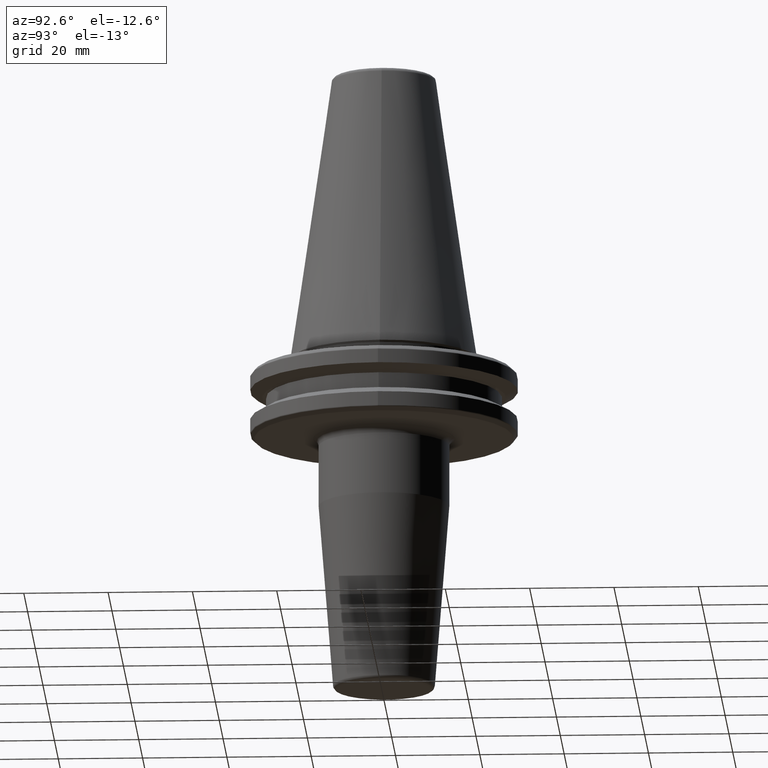
[diagram: clean part render]
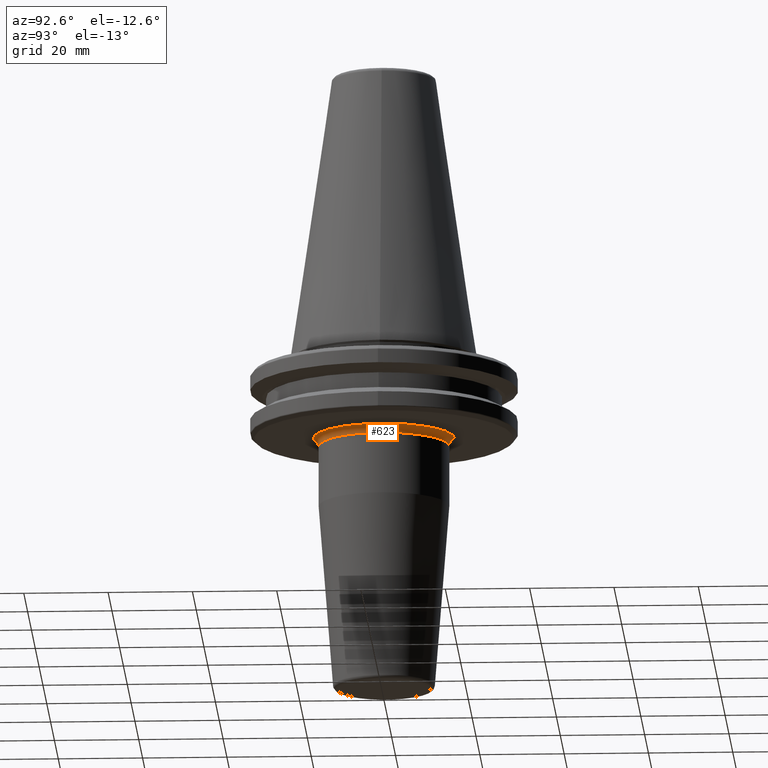
[diagram: same view with one face highlighted and labeled with its STEP entity id]
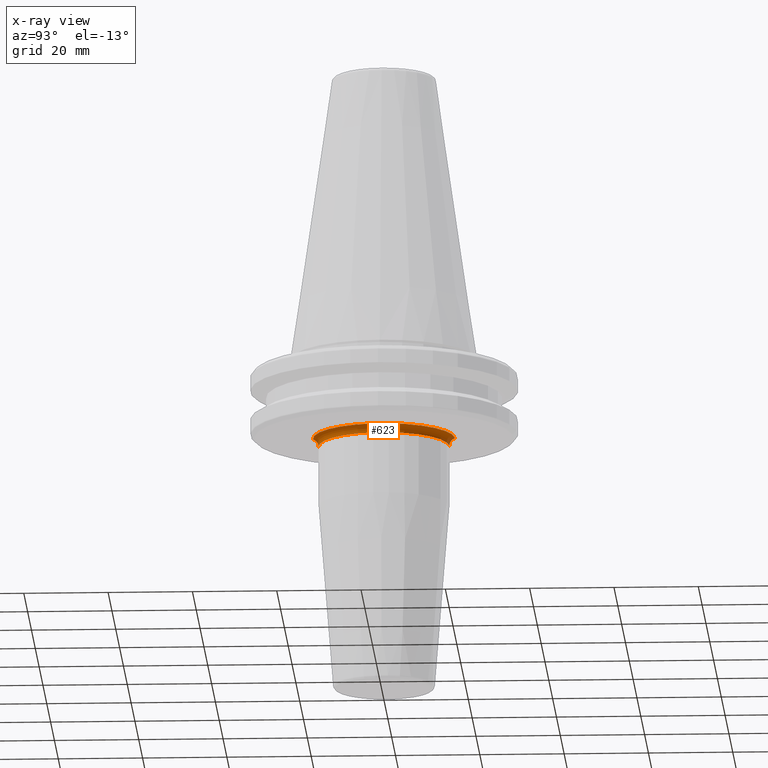
[diagram: x-ray of the same camera — body ghosted, the highlighted face saturated]
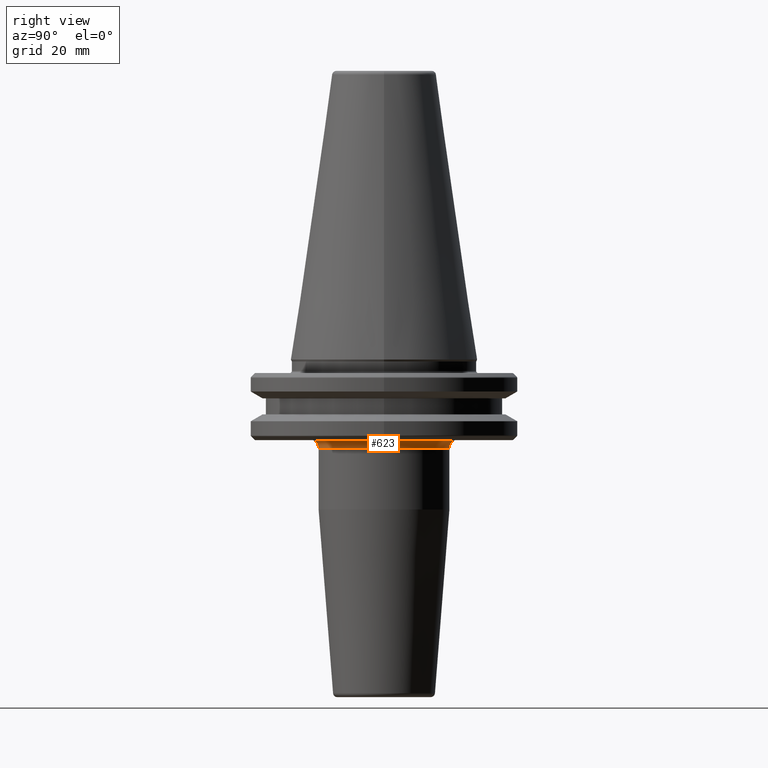
[diagram: same view with one face highlighted and labeled with its STEP entity id]
A machine part, auxiliary view. The second image highlights one B-rep face of the part: STEP entity #623.
The next image is the same camera in x-ray: the body ghosted, the highlighted face saturated — about 0% of this face is hidden behind the body in this view.
A second angle (right view) of the same face is appended — the face is thin or edge-on in the first view.
In plain terms, the highlighted toroidal blend (fillet) surface has major radius 17.5 mm and minor (blend) radius 2 mm.
Its self-contained STEP definition (entity closure, byte-faithful):
#14 = CIRCLE ( 'NONE', #626, 2.000000000000001800 ) ;
#24 = DIRECTION ( 'NONE',  ( 0.0000000000000000000, 1.000000000000000000, 2.829168385244881300E-016 ) ) ;
#37 = EDGE_CURVE ( 'NONE', #85, #1128, #14, .T. ) ;
#43 = DIRECTION ( 'NONE',  ( -1.224646799147353500E-016, 1.000000000000000000, 0.0000000000000000000 ) ) ;
#73 = CARTESIAN_POINT ( 'NONE',  ( 1.898202538678399900E-015, -15.50000000000003400, -20.98284271247461800 ) ) ;
#85 = VERTEX_POINT ( 'NONE', #742 ) ;
#190 = ORIENTED_EDGE ( 'NONE', *, *, #1254, .T. ) ;
#294 = CIRCLE ( 'NONE', #365, 2.000000000000001800 ) ;
#317 = CARTESIAN_POINT ( 'NONE',  ( 0.0000000000000000000, 17.50000000000000000, -20.98284271247461100 ) ) ;
#365 = AXIS2_PLACEMENT_3D ( 'NONE', #1207, #650, #43 ) ;
#405 = DIRECTION ( 'NONE',  ( 0.0000000000000000000, 1.000000000000000000, 2.238352872228135700E-016 ) ) ;
#412 = DIRECTION ( 'NONE',  ( -0.0000000000000000000, 2.829168385244881300E-016, -1.000000000000000000 ) ) ;
#421 = ORIENTED_EDGE ( 'NONE', *, *, #1201, .F. ) ;
#427 = VERTEX_POINT ( 'NONE', #527 ) ;
#482 = CIRCLE ( 'NONE', #1043, 15.50000000000001800 ) ;
#527 = CARTESIAN_POINT ( 'NONE',  ( 2.060533732398856700E-015, -16.82553478956939200, -19.10000000000000500 ) ) ;
#541 = DIRECTION ( 'NONE',  ( 0.0000000000000000000, 0.0000000000000000000, 1.000000000000000000 ) ) ;
#547 = DIRECTION ( 'NONE',  ( -1.000000000000000000, 0.0000000000000000000, 0.0000000000000000000 ) ) ;
#562 = DIRECTION ( 'NONE',  ( 0.0000000000000000000, 0.0000000000000000000, -1.000000000000000000 ) ) ;
#623 = ADVANCED_FACE ( 'NONE', ( #957 ), #703, .F. ) ;
#626 = AXIS2_PLACEMENT_3D ( 'NONE', #317, #547, #541 ) ;
#637 = AXIS2_PLACEMENT_3D ( 'NONE', #1019, #807, #24 ) ;
#650 = DIRECTION ( 'NONE',  ( 1.000000000000000000, 1.224646799147353200E-016, 3.464732007239029900E-032 ) ) ;
#703 = TOROIDAL_SURFACE ( 'NONE', #637, 17.50000000000001800, 2.000000000000001800 ) ;
#736 = EDGE_CURVE ( 'NONE', #85, #847, #482, .T. ) ;
#742 = CARTESIAN_POINT ( 'NONE',  ( 0.0000000000000000000, 15.50000000000000000, -20.98284271247461100 ) ) ;
#760 = AXIS2_PLACEMENT_3D ( 'NONE', #1122, #562, #1219 ) ;
#764 = ORIENTED_EDGE ( 'NONE', *, *, #736, .F. ) ;
#807 = DIRECTION ( 'NONE',  ( -0.0000000000000000000, 2.829168385244881300E-016, -1.000000000000000000 ) ) ;
#847 = VERTEX_POINT ( 'NONE', #73 ) ;
#888 = CARTESIAN_POINT ( 'NONE',  ( 0.0000000000000000000, -1.670378735265370500E-014, -20.98284271247461400 ) ) ;
#938 = ORIENTED_EDGE ( 'NONE', *, *, #37, .T. ) ;
#957 = FACE_OUTER_BOUND ( 'NONE', #1095, .T. ) ;
#960 = CARTESIAN_POINT ( 'NONE',  ( 0.0000000000000000000, 16.82553478956934300, -19.10000000000000500 ) ) ;
#1019 = CARTESIAN_POINT ( 'NONE',  ( 0.0000000000000000000, -1.734723475976807100E-014, -20.98284271247461400 ) ) ;
#1043 = AXIS2_PLACEMENT_3D ( 'NONE', #888, #412, #405 ) ;
#1095 = EDGE_LOOP ( 'NONE', ( #421, #764, #938, #190 ) ) ;
#1122 = CARTESIAN_POINT ( 'NONE',  ( 0.0000000000000000000, -1.734723475976807100E-014, -19.10000000000000500 ) ) ;
#1128 = VERTEX_POINT ( 'NONE', #960 ) ;
#1201 = EDGE_CURVE ( 'NONE', #847, #427, #294, .T. ) ;
#1207 = CARTESIAN_POINT ( 'NONE',  ( 2.143131898507870200E-015, -17.50000000000003600, -20.98284271247461800 ) ) ;
#1219 = DIRECTION ( 'NONE',  ( 1.000000000000000000, 0.0000000000000000000, 0.0000000000000000000 ) ) ;
#1239 = CIRCLE ( 'NONE', #760, 16.82553478956936700 ) ;
#1254 = EDGE_CURVE ( 'NONE', #1128, #427, #1239, .T. ) ;